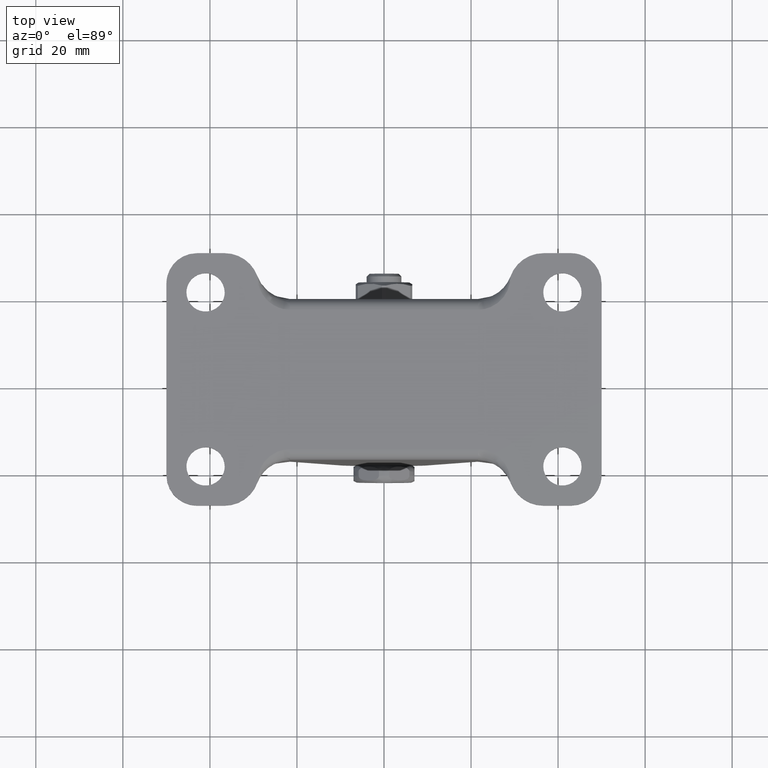
[diagram: clean part render]
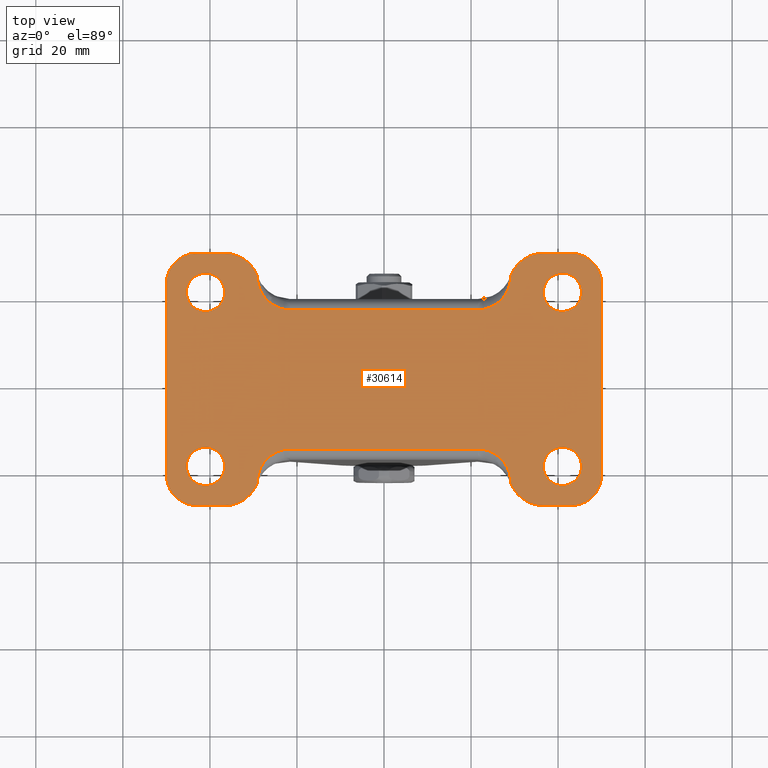
[diagram: same view with one face highlighted and labeled with its STEP entity id]
A machine part, top view. The second image highlights one B-rep face of the part: STEP entity #30614.
In plain terms, the highlighted face is a freeform B-spline surface patch.
Its self-contained STEP definition (entity closure, byte-faithful):
#27763=CARTESIAN_POINT('',(40.480649355676732,15.630757984702500,72.0));
#27764=VERTEX_POINT('',#27763);
#27770=CARTESIAN_POINT('',(45.400000100000007,20.0,72.0));
#27771=VERTEX_POINT('',#27770);
#27772=CARTESIAN_POINT('',(40.480649355676725,15.630757984702500,72.0));
#27773=CARTESIAN_POINT('',(40.739413867578762,15.599999899999998,72.0));
#27774=CARTESIAN_POINT('',(41.0,15.599999900000000,72.0));
#27775=CARTESIAN_POINT('',(45.400000100000014,15.599999900000011,72.0));
#27776=CARTESIAN_POINT('',(45.400000100000007,20.0,72.0));
#27784=(BOUNDED_CURVE()B_SPLINE_CURVE(2,(#27772,#27773,#27774,#27775,#27776),.UNSPECIFIED.,.F.,.U.)B_SPLINE_CURVE_WITH_KNOTS((3,2,3),(0.229562473513315,0.250000000000000,0.500000000000000),.UNSPECIFIED.)CURVE()GEOMETRIC_REPRESENTATION_ITEM()RATIONAL_B_SPLINE_CURVE((0.956026754183321,0.976055948330919,1.0,0.707106781186547,1.0))REPRESENTATION_ITEM(''));
#27785=EDGE_CURVE('',#27764,#27771,#27784,.T.);
#27787=CARTESIAN_POINT('',(41.268613580928609,24.391793212816459,72.0));
#27788=VERTEX_POINT('',#27787);
#27789=CARTESIAN_POINT('',(45.400000100000007,20.0,72.0));
#27790=CARTESIAN_POINT('',(45.400000100000007,24.139106786811961,72.000000000000014));
#27791=CARTESIAN_POINT('',(41.268613580928616,24.391793212816459,72.0));
#27799=(BOUNDED_CURVE()B_SPLINE_CURVE(2,(#27789,#27790,#27791),.UNSPECIFIED.,.F.,.U.)B_SPLINE_CURVE_WITH_KNOTS((3,3),(0.500000000000000,0.739332962173575),.UNSPECIFIED.)CURVE()GEOMETRIC_REPRESENTATION_ITEM()RATIONAL_B_SPLINE_CURVE((1.0,0.719603993363293,0.976072041526622))REPRESENTATION_ITEM(''));
#27800=EDGE_CURVE('',#27771,#27788,#27799,.T.);
#27874=CARTESIAN_POINT('',(36.599999900000000,20.0,72.0));
#27875=VERTEX_POINT('',#27874);
#27876=CARTESIAN_POINT('',(41.268613580928609,24.391793212816459,72.0));
#27877=CARTESIAN_POINT('',(41.134432162441897,24.400000100000000,72.0));
#27878=CARTESIAN_POINT('',(41.0,24.400000100000000,72.0));
#27879=CARTESIAN_POINT('',(36.599999900000000,24.400000100000007,72.0));
#27880=CARTESIAN_POINT('',(36.599999900000000,20.0,72.0));
#27888=(BOUNDED_CURVE()B_SPLINE_CURVE(2,(#27876,#27877,#27878,#27879,#27880),.UNSPECIFIED.,.F.,.U.)B_SPLINE_CURVE_WITH_KNOTS((3,2,3),(0.739332962173576,0.750000000000000,1.0),.UNSPECIFIED.)CURVE()GEOMETRIC_REPRESENTATION_ITEM()RATIONAL_B_SPLINE_CURVE((0.976072041526624,0.987502787823255,1.0,0.707106781186547,1.0))REPRESENTATION_ITEM(''));
#27889=EDGE_CURVE('',#27788,#27875,#27888,.T.);
#27891=CARTESIAN_POINT('',(36.599999900000000,20.0,72.0));
#27892=CARTESIAN_POINT('',(36.599999899999993,16.092031997050764,72.0));
#27893=CARTESIAN_POINT('',(40.480649355676732,15.630757984702496,72.0));
#27901=(BOUNDED_CURVE()B_SPLINE_CURVE(2,(#27891,#27892,#27893),.UNSPECIFIED.,.F.,.U.)B_SPLINE_CURVE_WITH_KNOTS((3,3),(0.0,0.229562473513315),.UNSPECIFIED.)CURVE()GEOMETRIC_REPRESENTATION_ITEM()RATIONAL_B_SPLINE_CURVE((1.0,0.731050832855628,0.956026754183321))REPRESENTATION_ITEM(''));
#27902=EDGE_CURVE('',#27875,#27764,#27901,.T.);
#27949=CARTESIAN_POINT('',(-41.519350644323268,15.630757984702500,72.0));
#27950=VERTEX_POINT('',#27949);
#27956=CARTESIAN_POINT('',(-36.599999900000000,20.0,72.0));
#27957=VERTEX_POINT('',#27956);
#27958=CARTESIAN_POINT('',(-41.519350644323268,15.630757984702500,72.0));
#27959=CARTESIAN_POINT('',(-41.260586132421238,15.599999899999998,72.0));
#27960=CARTESIAN_POINT('',(-41.0,15.599999900000000,72.0));
#27961=CARTESIAN_POINT('',(-36.599999900000000,15.599999900000011,72.0));
#27962=CARTESIAN_POINT('',(-36.599999900000000,20.0,72.0));
#27970=(BOUNDED_CURVE()B_SPLINE_CURVE(2,(#27958,#27959,#27960,#27961,#27962),.UNSPECIFIED.,.F.,.U.)B_SPLINE_CURVE_WITH_KNOTS((3,2,3),(0.229562473513315,0.250000000000000,0.500000000000000),.UNSPECIFIED.)CURVE()GEOMETRIC_REPRESENTATION_ITEM()RATIONAL_B_SPLINE_CURVE((0.956026754183321,0.976055948330919,1.0,0.707106781186547,1.0))REPRESENTATION_ITEM(''));
#27971=EDGE_CURVE('',#27950,#27957,#27970,.T.);
#27973=CARTESIAN_POINT('',(-40.731386419071399,24.391793212816459,72.0));
#27974=VERTEX_POINT('',#27973);
#27975=CARTESIAN_POINT('',(-36.599999900000000,20.0,72.0));
#27976=CARTESIAN_POINT('',(-36.599999899999993,24.139106786812018,72.0));
#27977=CARTESIAN_POINT('',(-40.731386419071399,24.391793212816456,72.000000000000014));
#27985=(BOUNDED_CURVE()B_SPLINE_CURVE(2,(#27975,#27976,#27977),.UNSPECIFIED.,.F.,.U.)B_SPLINE_CURVE_WITH_KNOTS((3,3),(0.500000000000000,0.739332962173577),.UNSPECIFIED.)CURVE()GEOMETRIC_REPRESENTATION_ITEM()RATIONAL_B_SPLINE_CURVE((1.0,0.719603993363291,0.976072041526627))REPRESENTATION_ITEM(''));
#27986=EDGE_CURVE('',#27957,#27974,#27985,.T.);
#28060=CARTESIAN_POINT('',(-45.400000100000007,20.0,72.0));
#28061=VERTEX_POINT('',#28060);
#28062=CARTESIAN_POINT('',(-40.731386419071399,24.391793212816463,72.0));
#28063=CARTESIAN_POINT('',(-40.865567837558110,24.400000099999993,72.000000000000014));
#28064=CARTESIAN_POINT('',(-41.0,24.400000100000000,72.0));
#28065=CARTESIAN_POINT('',(-45.400000100000014,24.400000100000007,72.0));
#28066=CARTESIAN_POINT('',(-45.400000100000007,20.0,72.0));
#28074=(BOUNDED_CURVE()B_SPLINE_CURVE(2,(#28062,#28063,#28064,#28065,#28066),.UNSPECIFIED.,.F.,.U.)B_SPLINE_CURVE_WITH_KNOTS((3,2,3),(0.739332962173576,0.750000000000000,1.0),.UNSPECIFIED.)CURVE()GEOMETRIC_REPRESENTATION_ITEM()RATIONAL_B_SPLINE_CURVE((0.976072041526625,0.987502787823256,1.0,0.707106781186547,1.0))REPRESENTATION_ITEM(''));
#28075=EDGE_CURVE('',#27974,#28061,#28074,.T.);
#28077=CARTESIAN_POINT('',(-45.400000100000007,20.0,72.0));
#28078=CARTESIAN_POINT('',(-45.400000100000014,16.092031997050764,72.0));
#28079=CARTESIAN_POINT('',(-41.519350644323282,15.630757984702496,72.0));
#28087=(BOUNDED_CURVE()B_SPLINE_CURVE(2,(#28077,#28078,#28079),.UNSPECIFIED.,.F.,.U.)B_SPLINE_CURVE_WITH_KNOTS((3,3),(0.0,0.229562473513315),.UNSPECIFIED.)CURVE()GEOMETRIC_REPRESENTATION_ITEM()RATIONAL_B_SPLINE_CURVE((1.0,0.731050832855628,0.956026754183321))REPRESENTATION_ITEM(''));
#28088=EDGE_CURVE('',#28061,#27950,#28087,.T.);
#28135=CARTESIAN_POINT('',(-41.519350644323268,-24.369242015297509,72.0));
#28136=VERTEX_POINT('',#28135);
#28142=CARTESIAN_POINT('',(-36.599999900000000,-20.0,72.0));
#28143=VERTEX_POINT('',#28142);
#28144=CARTESIAN_POINT('',(-41.519350644323268,-24.369242015297512,72.0));
#28145=CARTESIAN_POINT('',(-41.260586132421246,-24.400000100000003,72.0));
#28146=CARTESIAN_POINT('',(-41.0,-24.400000100000000,72.0));
#28147=CARTESIAN_POINT('',(-36.599999900000000,-24.400000100000007,72.0));
#28148=CARTESIAN_POINT('',(-36.599999900000000,-20.0,72.0));
#28156=(BOUNDED_CURVE()B_SPLINE_CURVE(2,(#28144,#28145,#28146,#28147,#28148),.UNSPECIFIED.,.F.,.U.)B_SPLINE_CURVE_WITH_KNOTS((3,2,3),(0.229562473513315,0.250000000000000,0.500000000000000),.UNSPECIFIED.)CURVE()GEOMETRIC_REPRESENTATION_ITEM()RATIONAL_B_SPLINE_CURVE((0.956026754183321,0.976055948330919,1.0,0.707106781186547,1.0))REPRESENTATION_ITEM(''));
#28157=EDGE_CURVE('',#28136,#28143,#28156,.T.);
#28159=CARTESIAN_POINT('',(-40.731386419071399,-15.608206787183541,72.0));
#28160=VERTEX_POINT('',#28159);
#28161=CARTESIAN_POINT('',(-36.599999900000000,-20.0,72.0));
#28162=CARTESIAN_POINT('',(-36.599999899999993,-15.860893213187987,72.0));
#28163=CARTESIAN_POINT('',(-40.731386419071399,-15.608206787183539,72.000000000000014));
#28171=(BOUNDED_CURVE()B_SPLINE_CURVE(2,(#28161,#28162,#28163),.UNSPECIFIED.,.F.,.U.)B_SPLINE_CURVE_WITH_KNOTS((3,3),(0.500000000000000,0.739332962173577),.UNSPECIFIED.)CURVE()GEOMETRIC_REPRESENTATION_ITEM()RATIONAL_B_SPLINE_CURVE((1.0,0.719603993363291,0.976072041526627))REPRESENTATION_ITEM(''));
#28172=EDGE_CURVE('',#28143,#28160,#28171,.T.);
#28246=CARTESIAN_POINT('',(-45.400000100000007,-20.0,72.0));
#28247=VERTEX_POINT('',#28246);
#28248=CARTESIAN_POINT('',(-40.731386419071399,-15.608206787183544,72.0));
#28249=CARTESIAN_POINT('',(-40.865567837558110,-15.599999900000002,72.000000000000014));
#28250=CARTESIAN_POINT('',(-41.0,-15.599999900000000,72.0));
#28251=CARTESIAN_POINT('',(-45.400000100000014,-15.599999900000011,72.0));
#28252=CARTESIAN_POINT('',(-45.400000100000007,-20.0,72.0));
#28260=(BOUNDED_CURVE()B_SPLINE_CURVE(2,(#28248,#28249,#28250,#28251,#28252),.UNSPECIFIED.,.F.,.U.)B_SPLINE_CURVE_WITH_KNOTS((3,2,3),(0.739332962173576,0.750000000000000,1.0),.UNSPECIFIED.)CURVE()GEOMETRIC_REPRESENTATION_ITEM()RATIONAL_B_SPLINE_CURVE((0.976072041526625,0.987502787823256,1.0,0.707106781186547,1.0))REPRESENTATION_ITEM(''));
#28261=EDGE_CURVE('',#28160,#28247,#28260,.T.);
#28263=CARTESIAN_POINT('',(-45.400000100000007,-20.0,72.0));
#28264=CARTESIAN_POINT('',(-45.400000100000007,-23.907968002949236,71.999999999999986));
#28265=CARTESIAN_POINT('',(-41.519350644323268,-24.369242015297505,71.999999999999986));
#28273=(BOUNDED_CURVE()B_SPLINE_CURVE(2,(#28263,#28264,#28265),.UNSPECIFIED.,.F.,.U.)B_SPLINE_CURVE_WITH_KNOTS((3,3),(0.0,0.229562473513315),.UNSPECIFIED.)CURVE()GEOMETRIC_REPRESENTATION_ITEM()RATIONAL_B_SPLINE_CURVE((1.0,0.731050832855629,0.956026754183321))REPRESENTATION_ITEM(''));
#28274=EDGE_CURVE('',#28247,#28136,#28273,.T.);
#28321=CARTESIAN_POINT('',(40.480649355676732,-24.369242015297509,72.0));
#28322=VERTEX_POINT('',#28321);
#28328=CARTESIAN_POINT('',(45.400000100000007,-20.0,72.0));
#28329=VERTEX_POINT('',#28328);
#28330=CARTESIAN_POINT('',(40.480649355676732,-24.369242015297512,72.0));
#28331=CARTESIAN_POINT('',(40.739413867578762,-24.400000100000003,72.0));
#28332=CARTESIAN_POINT('',(41.0,-24.400000100000000,72.0));
#28333=CARTESIAN_POINT('',(45.400000100000014,-24.400000100000007,72.0));
#28334=CARTESIAN_POINT('',(45.400000100000007,-20.0,72.0));
#28342=(BOUNDED_CURVE()B_SPLINE_CURVE(2,(#28330,#28331,#28332,#28333,#28334),.UNSPECIFIED.,.F.,.U.)B_SPLINE_CURVE_WITH_KNOTS((3,2,3),(0.229562473513315,0.250000000000000,0.500000000000000),.UNSPECIFIED.)CURVE()GEOMETRIC_REPRESENTATION_ITEM()RATIONAL_B_SPLINE_CURVE((0.956026754183321,0.976055948330919,1.0,0.707106781186547,1.0))REPRESENTATION_ITEM(''));
#28343=EDGE_CURVE('',#28322,#28329,#28342,.T.);
#28345=CARTESIAN_POINT('',(41.268613580928609,-15.608206787183541,72.0));
#28346=VERTEX_POINT('',#28345);
#28347=CARTESIAN_POINT('',(45.400000100000007,-20.0,72.0));
#28348=CARTESIAN_POINT('',(45.400000100000007,-15.860893213188042,72.000000000000014));
#28349=CARTESIAN_POINT('',(41.268613580928616,-15.608206787183541,72.0));
#28357=(BOUNDED_CURVE()B_SPLINE_CURVE(2,(#28347,#28348,#28349),.UNSPECIFIED.,.F.,.U.)B_SPLINE_CURVE_WITH_KNOTS((3,3),(0.500000000000000,0.739332962173575),.UNSPECIFIED.)CURVE()GEOMETRIC_REPRESENTATION_ITEM()RATIONAL_B_SPLINE_CURVE((1.0,0.719603993363293,0.976072041526622))REPRESENTATION_ITEM(''));
#28358=EDGE_CURVE('',#28329,#28346,#28357,.T.);
#28432=CARTESIAN_POINT('',(36.599999900000000,-20.0,72.0));
#28433=VERTEX_POINT('',#28432);
#28434=CARTESIAN_POINT('',(41.268613580928609,-15.608206787183539,72.0));
#28435=CARTESIAN_POINT('',(41.134432162441897,-15.599999900000006,72.0));
#28436=CARTESIAN_POINT('',(41.0,-15.599999900000000,72.0));
#28437=CARTESIAN_POINT('',(36.599999900000000,-15.599999900000011,72.0));
#28438=CARTESIAN_POINT('',(36.599999900000000,-20.0,72.0));
#28446=(BOUNDED_CURVE()B_SPLINE_CURVE(2,(#28434,#28435,#28436,#28437,#28438),.UNSPECIFIED.,.F.,.U.)B_SPLINE_CURVE_WITH_KNOTS((3,2,3),(0.739332962173576,0.750000000000000,1.0),.UNSPECIFIED.)CURVE()GEOMETRIC_REPRESENTATION_ITEM()RATIONAL_B_SPLINE_CURVE((0.976072041526624,0.987502787823255,1.0,0.707106781186547,1.0))REPRESENTATION_ITEM(''));
#28447=EDGE_CURVE('',#28346,#28433,#28446,.T.);
#28449=CARTESIAN_POINT('',(36.599999900000000,-20.0,72.0));
#28450=CARTESIAN_POINT('',(36.599999900000007,-23.907968002949236,71.999999999999986));
#28451=CARTESIAN_POINT('',(40.480649355676732,-24.369242015297505,71.999999999999986));
#28459=(BOUNDED_CURVE()B_SPLINE_CURVE(2,(#28449,#28450,#28451),.UNSPECIFIED.,.F.,.U.)B_SPLINE_CURVE_WITH_KNOTS((3,3),(0.0,0.229562473513315),.UNSPECIFIED.)CURVE()GEOMETRIC_REPRESENTATION_ITEM()RATIONAL_B_SPLINE_CURVE((1.0,0.731050832855629,0.956026754183321))REPRESENTATION_ITEM(''));
#28460=EDGE_CURVE('',#28433,#28322,#28459,.T.);
#29248=CARTESIAN_POINT('',(-21.590020549778849,-15.999980000000001,72.0));
#29249=VERTEX_POINT('',#29248);
#29263=CARTESIAN_POINT('',(-29.102518009696151,-23.749993471923052,72.0));
#29264=VERTEX_POINT('',#29263);
#29265=CARTESIAN_POINT('',(-29.102518009696151,-23.749993471923052,72.0));
#29266=CARTESIAN_POINT('',(-29.124434196517711,-22.367632242303991,72.0));
#29267=CARTESIAN_POINT('',(-28.657625978807619,-21.061308647487991,72.0));
#29268=CARTESIAN_POINT('',(-28.154351266947650,-19.652936631241221,72.0));
#29269=CARTESIAN_POINT('',(-27.157142996489860,-18.533722371588961,72.0));
#29270=CARTESIAN_POINT('',(-26.122198754784449,-17.372155237042499,72.0));
#29271=CARTESIAN_POINT('',(-24.675544332181069,-16.698311954679820,72.0));
#29272=CARTESIAN_POINT('',(-23.176782604990208,-16.000197390517091,72.0));
#29273=CARTESIAN_POINT('',(-21.590020549778849,-15.999980000000001,72.0));
#29274=B_SPLINE_CURVE_WITH_KNOTS('',2,(#29265,#29266,#29267,#29268,#29269,#29270,#29271,#29272,#29273),.UNSPECIFIED.,.F.,.U.,(3,2,2,2,3),(0.000000105877122,0.250000000000000,0.500000000000000,0.750000000000000,1.0),.UNSPECIFIED.);
#29275=EDGE_CURVE('',#29264,#29249,#29274,.T.);
#29322=CARTESIAN_POINT('',(21.590029450221252,-15.999980000000001,72.0));
#29323=VERTEX_POINT('',#29322);
#29337=CARTESIAN_POINT('',(-21.590020549778849,-15.999980000000001,72.0));
#29338=CARTESIAN_POINT('',(21.590029450221252,-15.999980000000001,72.0));
#29339=QUASI_UNIFORM_CURVE('',1,(#29337,#29338),.UNSPECIFIED.,.F.,.U.);
#29340=EDGE_CURVE('',#29249,#29323,#29339,.T.);
#29383=CARTESIAN_POINT('',(29.102521846314598,-23.749986134723851,72.0));
#29384=VERTEX_POINT('',#29383);
#29414=CARTESIAN_POINT('',(21.590029450221252,-15.999980000000001,72.0));
#29415=CARTESIAN_POINT('',(23.175862889890801,-16.000197092444150,72.0));
#29416=CARTESIAN_POINT('',(24.675550057504100,-16.698310812313998,72.0));
#29417=CARTESIAN_POINT('',(26.120715125961102,-17.371044155343199,72.0));
#29418=CARTESIAN_POINT('',(27.157146486000251,-18.533718920057652,72.0));
#29419=CARTESIAN_POINT('',(28.153448112101749,-19.651375914408401,72.0));
#29420=CARTESIAN_POINT('',(28.657628827638352,-21.061302455086949,72.0));
#29421=CARTESIAN_POINT('',(29.124451102283299,-22.366757214699000,72.0));
#29422=CARTESIAN_POINT('',(29.102521846314598,-23.749986134723851,72.0));
#29423=B_SPLINE_CURVE_WITH_KNOTS('',2,(#29414,#29415,#29416,#29417,#29418,#29419,#29420,#29421,#29422),.UNSPECIFIED.,.F.,.U.,(3,2,2,2,3),(0.0,0.250000000000000,0.500000000000000,0.750000000000000,1.0),.UNSPECIFIED.);
#29424=EDGE_CURVE('',#29323,#29384,#29423,.T.);
#29462=CARTESIAN_POINT('',(-29.102516738778501,23.749990000000000,72.0));
#29463=VERTEX_POINT('',#29462);
#29495=CARTESIAN_POINT('',(-21.590023477556901,15.999980000000001,72.0));
#29496=VERTEX_POINT('',#29495);
#29497=CARTESIAN_POINT('',(-21.590023477556901,15.999980000000001,72.0));
#29498=CARTESIAN_POINT('',(-23.175857527652902,16.000197175518650,72.0));
#29499=CARTESIAN_POINT('',(-24.675545179561201,16.698311339204000,72.0));
#29500=CARTESIAN_POINT('',(-26.120710723254199,17.371045113892549,72.0));
#29501=CARTESIAN_POINT('',(-27.157142221486151,18.533720497982049,72.0));
#29502=CARTESIAN_POINT('',(-28.153443990701799,19.651378099249300,72.0));
#29503=CARTESIAN_POINT('',(-28.657624475090099,21.061305274881398,72.0));
#29504=CARTESIAN_POINT('',(-29.124446538283149,22.366760629582451,72.0));
#29505=CARTESIAN_POINT('',(-29.102516738778501,23.749990000000000,72.0));
#29506=B_SPLINE_CURVE_WITH_KNOTS('',2,(#29497,#29498,#29499,#29500,#29501,#29502,#29503,#29504,#29505),.UNSPECIFIED.,.F.,.U.,(3,2,2,2,3),(0.0,0.250000000000000,0.500000000000000,0.750000000000000,1.0),.UNSPECIFIED.);
#29507=EDGE_CURVE('',#29496,#29463,#29506,.T.);
#29539=CARTESIAN_POINT('',(21.590023477556802,15.999980000000001,72.0));
#29540=VERTEX_POINT('',#29539);
#29562=CARTESIAN_POINT('',(21.590023477556802,15.999980000000001,72.0));
#29563=CARTESIAN_POINT('',(-21.590023477556901,15.999980000000001,72.0));
#29564=QUASI_UNIFORM_CURVE('',1,(#29562,#29563),.UNSPECIFIED.,.F.,.U.);
#29565=EDGE_CURVE('',#29540,#29496,#29564,.T.);
#29602=CARTESIAN_POINT('',(29.102516738778402,23.749990000000000,72.0));
#29603=VERTEX_POINT('',#29602);
#29604=CARTESIAN_POINT('',(29.102516738778402,23.749990000000000,72.0));
#29605=CARTESIAN_POINT('',(29.124432775785849,22.367628702451551,72.0));
#29606=CARTESIAN_POINT('',(28.657624475090000,21.061305274881398,72.0));
#29607=CARTESIAN_POINT('',(28.154349884019801,19.652934027335451,72.0));
#29608=CARTESIAN_POINT('',(27.157142221486101,18.533720497982049,72.0));
#29609=CARTESIAN_POINT('',(26.122198599016350,17.372154108246349,72.0));
#29610=CARTESIAN_POINT('',(24.675545179560849,16.698311339204000,72.0));
#29611=CARTESIAN_POINT('',(23.176784482228800,16.000197302462499,72.0));
#29612=CARTESIAN_POINT('',(21.590023477556802,15.999980000000001,72.0));
#29613=B_SPLINE_CURVE_WITH_KNOTS('',2,(#29604,#29605,#29606,#29607,#29608,#29609,#29610,#29611,#29612),.UNSPECIFIED.,.F.,.U.,(3,2,2,2,3),(0.0,0.250000000000000,0.500000000000000,0.750000000000000,1.0),.UNSPECIFIED.);
#29614=EDGE_CURVE('',#29603,#29540,#29613,.T.);
#30419=CARTESIAN_POINT('',(-54.994999806180601,31.897099887584741,72.0));
#30420=CARTESIAN_POINT('',(54.995002488389623,31.897099887584741,72.0));
#30421=CARTESIAN_POINT('',(-54.994999806180601,-31.897101443265971,72.0));
#30422=CARTESIAN_POINT('',(54.995002488389623,-31.897101443265971,72.0));
#30423=B_SPLINE_SURFACE_WITH_KNOTS('',1,1,((#30419,#30421),(#30420,#30422)),.UNSPECIFIED.,.F.,.F.,.U.,(2,2),(2,2),(0.0,109.990002294570200),(0.0,63.794201330850719),.UNSPECIFIED.);
#30424=CARTESIAN_POINT('',(-36.615010000000012,-29.0,72.0));
#30425=VERTEX_POINT('',#30424);
#30426=CARTESIAN_POINT('',(-36.615010000000012,-29.0,72.0));
#30427=CARTESIAN_POINT('',(-31.024314891263348,-29.000000000000004,72.0));
#30428=CARTESIAN_POINT('',(-29.102518009696091,-23.749993471923069,72.0));
#30436=(BOUNDED_CURVE()B_SPLINE_CURVE(2,(#30426,#30427,#30428),.UNSPECIFIED.,.F.,.U.)CURVE()GEOMETRIC_REPRESENTATION_ITEM()QUASI_UNIFORM_CURVE()RATIONAL_B_SPLINE_CURVE((1.0,0.819679566657113,1.0))REPRESENTATION_ITEM(''));
#30437=EDGE_CURVE('',#30425,#29264,#30436,.T.);
#30438=ORIENTED_EDGE('',*,*,#30437,.T.);
#30439=ORIENTED_EDGE('',*,*,#29275,.T.);
#30440=ORIENTED_EDGE('',*,*,#29340,.T.);
#30441=ORIENTED_EDGE('',*,*,#29424,.T.);
#30442=CARTESIAN_POINT('',(36.615012792526848,-28.999999999999499,72.0));
#30443=VERTEX_POINT('',#30442);
#30444=CARTESIAN_POINT('',(29.102521846314598,-23.749986134723851,72.0));
#30445=CARTESIAN_POINT('',(31.024314335442501,-29.000000898796870,72.0));
#30446=CARTESIAN_POINT('',(36.615012792526848,-28.999999999999499,72.0));
#30454=(BOUNDED_CURVE()B_SPLINE_CURVE(2,(#30444,#30445,#30446),.UNSPECIFIED.,.F.,.U.)CURVE()GEOMETRIC_REPRESENTATION_ITEM()QUASI_UNIFORM_CURVE()RATIONAL_B_SPLINE_CURVE((1.0,0.819679267222085,1.0))REPRESENTATION_ITEM(''));
#30455=EDGE_CURVE('',#29384,#30443,#30454,.T.);
#30456=ORIENTED_EDGE('',*,*,#30455,.T.);
#30457=CARTESIAN_POINT('',(43.0,-29.0,72.0));
#30458=VERTEX_POINT('',#30457);
#30459=CARTESIAN_POINT('',(36.615012792526848,-28.999999999999499,72.0));
#30460=CARTESIAN_POINT('',(43.0,-29.0,72.0));
#30461=QUASI_UNIFORM_CURVE('',1,(#30459,#30460),.UNSPECIFIED.,.F.,.U.);
#30462=EDGE_CURVE('',#30443,#30458,#30461,.T.);
#30463=ORIENTED_EDGE('',*,*,#30462,.T.);
#30464=CARTESIAN_POINT('',(50.0,-22.0,72.0));
#30465=VERTEX_POINT('',#30464);
#30466=CARTESIAN_POINT('',(43.0,-29.0,72.0));
#30467=CARTESIAN_POINT('',(49.999999999999993,-28.999999999999989,72.0));
#30468=CARTESIAN_POINT('',(49.999999999999993,-22.0,72.0));
#30476=(BOUNDED_CURVE()B_SPLINE_CURVE(2,(#30466,#30467,#30468),.UNSPECIFIED.,.F.,.U.)CURVE()GEOMETRIC_REPRESENTATION_ITEM()QUASI_UNIFORM_CURVE()RATIONAL_B_SPLINE_CURVE((1.0,0.707106781186547,1.0))REPRESENTATION_ITEM(''));
#30477=EDGE_CURVE('',#30458,#30465,#30476,.T.);
#30478=ORIENTED_EDGE('',*,*,#30477,.T.);
#30479=CARTESIAN_POINT('',(50.0,22.0,72.0));
#30480=VERTEX_POINT('',#30479);
#30481=CARTESIAN_POINT('',(50.0,-22.0,72.0));
#30482=CARTESIAN_POINT('',(50.0,22.0,72.0));
#30483=QUASI_UNIFORM_CURVE('',1,(#30481,#30482),.UNSPECIFIED.,.F.,.U.);
#30484=EDGE_CURVE('',#30465,#30480,#30483,.T.);
#30485=ORIENTED_EDGE('',*,*,#30484,.T.);
#30486=CARTESIAN_POINT('',(43.000002199114853,28.999999999999648,72.0));
#30487=VERTEX_POINT('',#30486);
#30488=CARTESIAN_POINT('',(49.999999999999993,22.0,72.0));
#30489=CARTESIAN_POINT('',(49.999999999999986,28.999997800885495,72.0));
#30490=CARTESIAN_POINT('',(43.000002199114853,28.999999999999659,72.0));
#30498=(BOUNDED_CURVE()B_SPLINE_CURVE(2,(#30488,#30489,#30490),.UNSPECIFIED.,.F.,.U.)CURVE()GEOMETRIC_REPRESENTATION_ITEM()QUASI_UNIFORM_CURVE()RATIONAL_B_SPLINE_CURVE((1.0,0.707106892258612,1.0))REPRESENTATION_ITEM(''));
#30499=EDGE_CURVE('',#30480,#30487,#30498,.T.);
#30500=ORIENTED_EDGE('',*,*,#30499,.T.);
#30501=CARTESIAN_POINT('',(36.615010000000012,29.0,72.0));
#30502=VERTEX_POINT('',#30501);
#30503=CARTESIAN_POINT('',(43.000002199114853,28.999999999999648,72.0));
#30504=CARTESIAN_POINT('',(36.615010000000012,29.0,72.0));
#30505=QUASI_UNIFORM_CURVE('',1,(#30503,#30504),.UNSPECIFIED.,.F.,.U.);
#30506=EDGE_CURVE('',#30487,#30502,#30505,.T.);
#30507=ORIENTED_EDGE('',*,*,#30506,.T.);
#30508=CARTESIAN_POINT('',(36.615010000000012,29.0,72.0));
#30509=CARTESIAN_POINT('',(31.024312139837082,29.000000000000004,72.000000000000014));
#30510=CARTESIAN_POINT('',(29.102516738778402,23.749990000000000,72.0));
#30518=(BOUNDED_CURVE()B_SPLINE_CURVE(2,(#30508,#30509,#30510),.UNSPECIFIED.,.F.,.U.)CURVE()GEOMETRIC_REPRESENTATION_ITEM()QUASI_UNIFORM_CURVE()RATIONAL_B_SPLINE_CURVE((1.0,0.819679434291235,1.0))REPRESENTATION_ITEM(''));
#30519=EDGE_CURVE('',#30502,#29603,#30518,.T.);
#30520=ORIENTED_EDGE('',*,*,#30519,.T.);
#30521=ORIENTED_EDGE('',*,*,#29614,.T.);
#30522=ORIENTED_EDGE('',*,*,#29565,.T.);
#30523=ORIENTED_EDGE('',*,*,#29507,.T.);
#30524=CARTESIAN_POINT('',(-36.615007486725958,28.999999999999599,72.0));
#30525=VERTEX_POINT('',#30524);
#30526=CARTESIAN_POINT('',(-29.102516738778409,23.749990000000029,72.0));
#30527=CARTESIAN_POINT('',(-31.024311496908343,28.999998243630714,72.000000000000014));
#30528=CARTESIAN_POINT('',(-36.615007486725958,28.999999999999609,72.0));
#30536=(BOUNDED_CURVE()B_SPLINE_CURVE(2,(#30526,#30527,#30528),.UNSPECIFIED.,.F.,.U.)CURVE()GEOMETRIC_REPRESENTATION_ITEM()QUASI_UNIFORM_CURVE()RATIONAL_B_SPLINE_CURVE((1.0,0.819679524269973,1.0))REPRESENTATION_ITEM(''));
#30537=EDGE_CURVE('',#29463,#30525,#30536,.T.);
#30538=ORIENTED_EDGE('',*,*,#30537,.T.);
#30539=CARTESIAN_POINT('',(-43.0,29.0,72.0));
#30540=VERTEX_POINT('',#30539);
#30541=CARTESIAN_POINT('',(-36.615007486725958,28.999999999999599,72.0));
#30542=CARTESIAN_POINT('',(-43.0,29.0,72.0));
#30543=QUASI_UNIFORM_CURVE('',1,(#30541,#30542),.UNSPECIFIED.,.F.,.U.);
#30544=EDGE_CURVE('',#30525,#30540,#30543,.T.);
#30545=ORIENTED_EDGE('',*,*,#30544,.T.);
#30546=CARTESIAN_POINT('',(-49.999999999998401,22.000004886921900,72.0));
#30547=VERTEX_POINT('',#30546);
#30548=CARTESIAN_POINT('',(-43.0,29.0,72.0));
#30549=CARTESIAN_POINT('',(-49.999995113079805,28.999999999999986,72.0));
#30550=CARTESIAN_POINT('',(-49.999999999998288,22.000004886921900,72.0));
#30558=(BOUNDED_CURVE()B_SPLINE_CURVE(2,(#30548,#30549,#30550),.UNSPECIFIED.,.F.,.U.)CURVE()GEOMETRIC_REPRESENTATION_ITEM()QUASI_UNIFORM_CURVE()RATIONAL_B_SPLINE_CURVE((1.0,0.707107028013334,1.0))REPRESENTATION_ITEM(''));
#30559=EDGE_CURVE('',#30540,#30547,#30558,.T.);
#30560=ORIENTED_EDGE('',*,*,#30559,.T.);
#30561=CARTESIAN_POINT('',(-50.0,-22.0,72.0));
#30562=VERTEX_POINT('',#30561);
#30563=CARTESIAN_POINT('',(-49.999999999998401,22.000004886921900,72.0));
#30564=CARTESIAN_POINT('',(-50.0,-22.0,72.0));
#30565=QUASI_UNIFORM_CURVE('',1,(#30563,#30564),.UNSPECIFIED.,.F.,.U.);
#30566=EDGE_CURVE('',#30547,#30562,#30565,.T.);
#30567=ORIENTED_EDGE('',*,*,#30566,.T.);
#30568=CARTESIAN_POINT('',(-43.000003665191500,-28.999999999999051,72.0));
#30569=VERTEX_POINT('',#30568);
#30570=CARTESIAN_POINT('',(-49.999999999999993,-22.0,72.0));
#30571=CARTESIAN_POINT('',(-49.999999999999993,-28.999996334809456,72.0));
#30572=CARTESIAN_POINT('',(-43.000003665191500,-28.999999999999041,72.0));
#30580=(BOUNDED_CURVE()B_SPLINE_CURVE(2,(#30570,#30571,#30572),.UNSPECIFIED.,.F.,.U.)CURVE()GEOMETRIC_REPRESENTATION_ITEM()QUASI_UNIFORM_CURVE()RATIONAL_B_SPLINE_CURVE((1.0,0.707106966306649,1.0))REPRESENTATION_ITEM(''));
#30581=EDGE_CURVE('',#30562,#30569,#30580,.T.);
#30582=ORIENTED_EDGE('',*,*,#30581,.T.);
#30583=CARTESIAN_POINT('',(-43.000003665191500,-28.999999999999051,72.0));
#30584=CARTESIAN_POINT('',(-36.615010000000012,-29.0,72.0));
#30585=QUASI_UNIFORM_CURVE('',1,(#30583,#30584),.UNSPECIFIED.,.F.,.U.);
#30586=EDGE_CURVE('',#30569,#30425,#30585,.T.);
#30587=ORIENTED_EDGE('',*,*,#30586,.T.);
#30588=EDGE_LOOP('',(#30438,#30439,#30440,#30441,#30456,#30463,#30478,#30485,#30500,#30507,#30520,#30521,#30522,#30523,#30538,#30545,#30560,#30567,#30582,#30587));
#30589=FACE_OUTER_BOUND('',#30588,.T.);
#30590=ORIENTED_EDGE('',*,*,#28358,.F.);
#30591=ORIENTED_EDGE('',*,*,#28343,.F.);
#30592=ORIENTED_EDGE('',*,*,#28460,.F.);
#30593=ORIENTED_EDGE('',*,*,#28447,.F.);
#30594=EDGE_LOOP('',(#30590,#30591,#30592,#30593));
#30595=FACE_BOUND('',#30594,.T.);
#30596=ORIENTED_EDGE('',*,*,#28172,.F.);
#30597=ORIENTED_EDGE('',*,*,#28157,.F.);
#30598=ORIENTED_EDGE('',*,*,#28274,.F.);
#30599=ORIENTED_EDGE('',*,*,#28261,.F.);
#30600=EDGE_LOOP('',(#30596,#30597,#30598,#30599));
#30601=FACE_BOUND('',#30600,.T.);
#30602=ORIENTED_EDGE('',*,*,#27986,.F.);
#30603=ORIENTED_EDGE('',*,*,#27971,.F.);
#30604=ORIENTED_EDGE('',*,*,#28088,.F.);
#30605=ORIENTED_EDGE('',*,*,#28075,.F.);
#30606=EDGE_LOOP('',(#30602,#30603,#30604,#30605));
#30607=FACE_BOUND('',#30606,.T.);
#30608=ORIENTED_EDGE('',*,*,#27800,.F.);
#30609=ORIENTED_EDGE('',*,*,#27785,.F.);
#30610=ORIENTED_EDGE('',*,*,#27902,.F.);
#30611=ORIENTED_EDGE('',*,*,#27889,.F.);
#30612=EDGE_LOOP('',(#30608,#30609,#30610,#30611));
#30613=FACE_BOUND('',#30612,.T.);
#30614=ADVANCED_FACE('',(#30589,#30595,#30601,#30607,#30613),#30423,.F.);